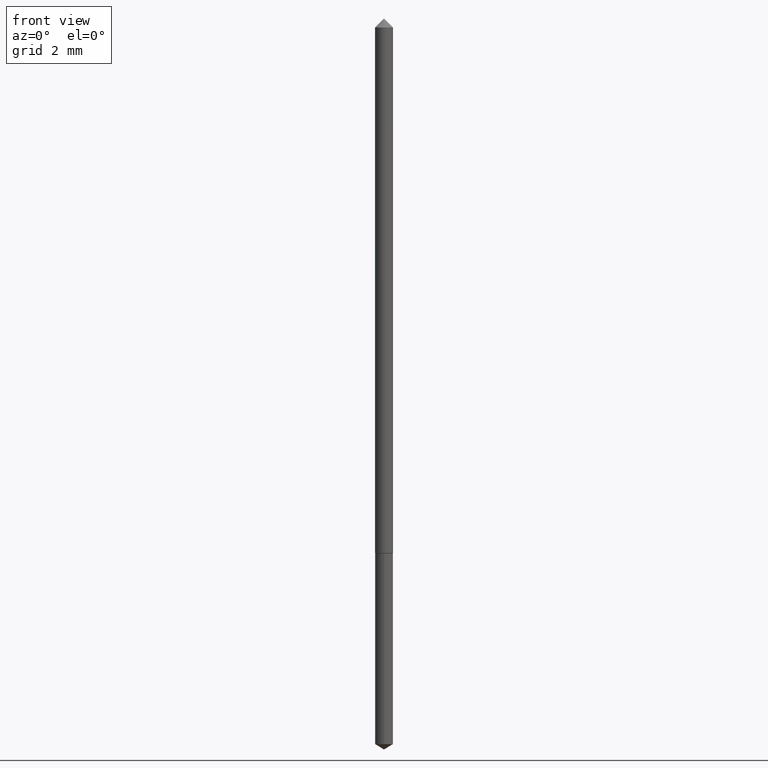
[diagram: clean part render]
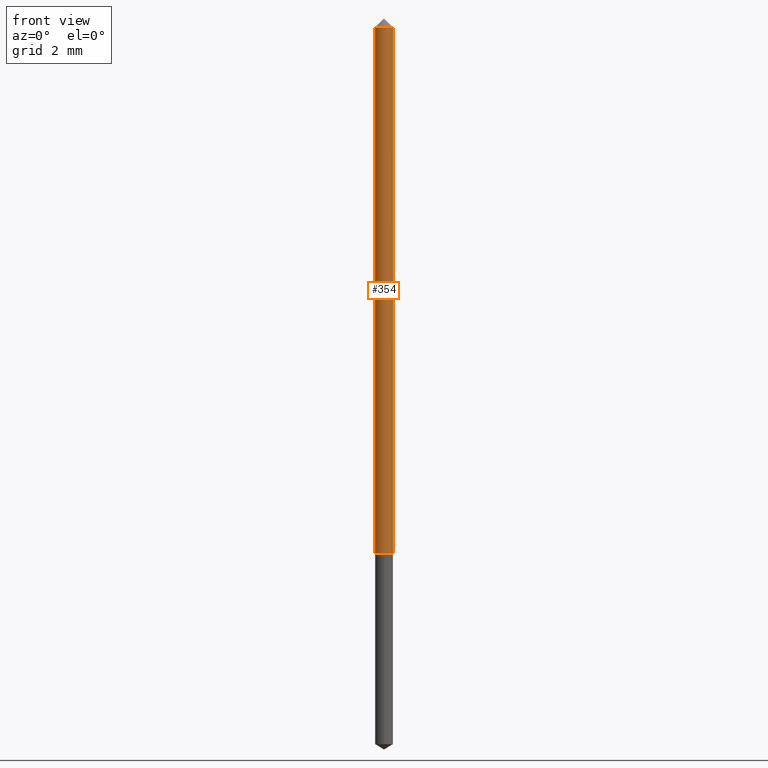
[diagram: same view with one face highlighted and labeled with its STEP entity id]
A machine part, front view. The second image highlights one B-rep face of the part: STEP entity #354.
In plain terms, the highlighted cylindrical surface (edge-blend (fillet) strip) has radius 0.2667 mm, axis along (-0, 0, 1).
Its self-contained STEP definition (entity closure, byte-faithful):
#3 = CARTESIAN_POINT ( 'NONE',  ( 0.01050000000000000586, -1.824298999545548390E-16, -0.03125000000000020123 ) ) ;
#14 = ORIENTED_EDGE ( 'NONE', *, *, #215, .F. ) ;
#24 = CARTESIAN_POINT ( 'NONE',  ( -0.01050000000000000586, -1.106823010776236722E-15, -0.03125000000000020123 ) ) ;
#33 = EDGE_LOOP ( 'NONE', ( #262, #161, #104, #14 ) ) ;
#38 = VECTOR ( 'NONE', #349, 39.37007874015748143 ) ;
#70 = FACE_OUTER_BOUND ( 'NONE', #33, .T. ) ;
#75 = AXIS2_PLACEMENT_3D ( 'NONE', #169, #150, #117 ) ;
#84 = CARTESIAN_POINT ( 'NONE',  ( -0.01050000000000004402, 7.460698725481083230E-17, -5.164881844767672693E-31 ) ) ;
#104 = ORIENTED_EDGE ( 'NONE', *, *, #313, .T. ) ;
#111 = EDGE_CURVE ( 'NONE', #178, #273, #152, .T. ) ;
#117 = DIRECTION ( 'NONE',  ( 1.000000000000000000, -6.982962677686277755E-15, 0.000000000000000000 ) ) ;
#121 = DIRECTION ( 'NONE',  ( -2.445468806185136597E-29, 3.491481338843145583E-15, 1.000000000000000000 ) ) ;
#124 = CARTESIAN_POINT ( 'NONE',  ( 0.01050000000000004402, -7.332110811570612044E-17, 5.119985614585753392E-31 ) ) ;
#132 = DIRECTION ( 'NONE',  ( 1.000000000000000000, -6.982962677686268288E-15, 4.876176775795935232E-29 ) ) ;
#141 = CARTESIAN_POINT ( 'NONE',  ( -0.01050000000000008218, -2.179144216968439268E-15, -0.6454999999999998517 ) ) ;
#150 = DIRECTION ( 'NONE',  ( -2.445468806185136597E-29, 3.491481338843145583E-15, 1.000000000000000000 ) ) ;
#152 = CIRCLE ( 'NONE', #75, 0.01050000000000008218 ) ;
#161 = ORIENTED_EDGE ( 'NONE', *, *, #111, .T. ) ;
#167 = DIRECTION ( 'NONE',  ( -2.445468806185136877E-29, 3.491481338843145188E-15, 1.000000000000000000 ) ) ;
#168 = CARTESIAN_POINT ( 'NONE',  ( 0.000000000000000000, 0.000000000000000000, 0.000000000000000000 ) ) ;
#169 = CARTESIAN_POINT ( 'NONE',  ( 1.578550114392505144E-29, -2.253751204223250249E-15, -0.6454999999999998517 ) ) ;
#174 = VERTEX_POINT ( 'NONE', #24 ) ;
#178 = VERTEX_POINT ( 'NONE', #141 ) ;
#198 = DIRECTION ( 'NONE',  ( -2.445468806185136597E-29, 3.491481338843145583E-15, 1.000000000000000000 ) ) ;
#215 = EDGE_CURVE ( 'NONE', #174, #246, #293, .T. ) ;
#219 = EDGE_CURVE ( 'NONE', #178, #174, #315, .T. ) ;
#228 = CARTESIAN_POINT ( 'NONE',  ( 0.01050000000000008218, -2.327072312338956554E-15, -0.6454999999999998517 ) ) ;
#246 = VERTEX_POINT ( 'NONE', #3 ) ;
#256 = CARTESIAN_POINT ( 'NONE',  ( 7.642090019328601786E-31, -1.091087918388490144E-16, -0.03125000000000020123 ) ) ;
#258 = AXIS2_PLACEMENT_3D ( 'NONE', #256, #198, #310 ) ;
#262 = ORIENTED_EDGE ( 'NONE', *, *, #219, .F. ) ;
#273 = VERTEX_POINT ( 'NONE', #228 ) ;
#293 = CIRCLE ( 'NONE', #258, 0.01050000000000000586 ) ;
#301 = LINE ( 'NONE', #124, #38 ) ;
#305 = VECTOR ( 'NONE', #167, 39.37007874015748143 ) ;
#310 = DIRECTION ( 'NONE',  ( 1.000000000000000000, -6.982962677686265133E-15, 0.000000000000000000 ) ) ;
#313 = EDGE_CURVE ( 'NONE', #273, #246, #301, .T. ) ;
#315 = LINE ( 'NONE', #84, #305 ) ;
#349 = DIRECTION ( 'NONE',  ( -2.445468806185136877E-29, 3.491481338843145188E-15, 1.000000000000000000 ) ) ;
#352 = CYLINDRICAL_SURFACE ( 'NONE', #359, 0.01050000000000004402 ) ;
#354 = ADVANCED_FACE ( 'NONE', ( #70 ), #352, .T. ) ;
#359 = AXIS2_PLACEMENT_3D ( 'NONE', #168, #121, #132 ) ;